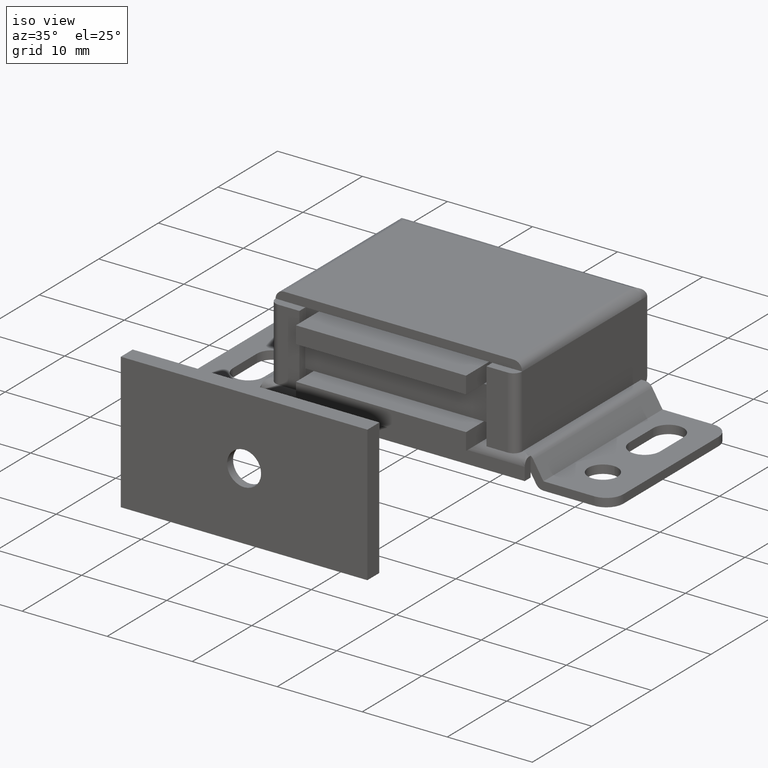
[diagram: clean part render]
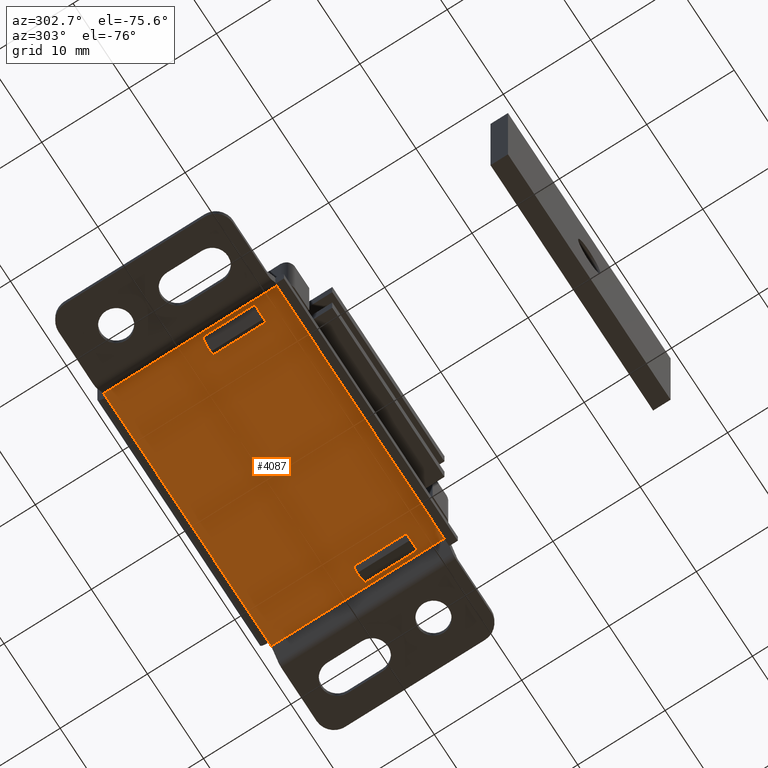
[diagram: tour spotlight — one face highlighted and labeled with its STEP entity id]
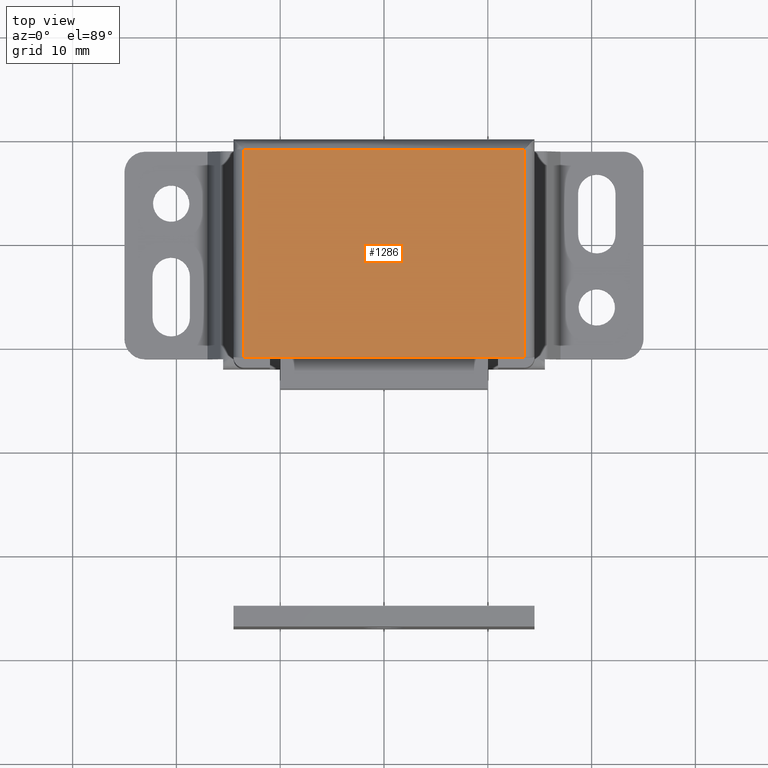
[diagram: tour spotlight — one face highlighted and labeled with its STEP entity id]
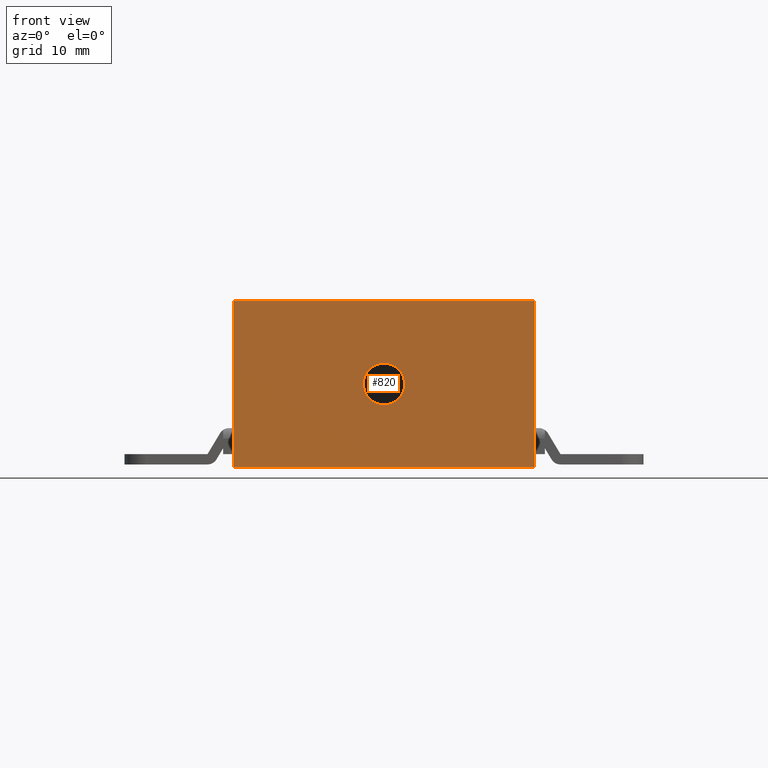
[diagram: tour spotlight — one face highlighted and labeled with its STEP entity id]
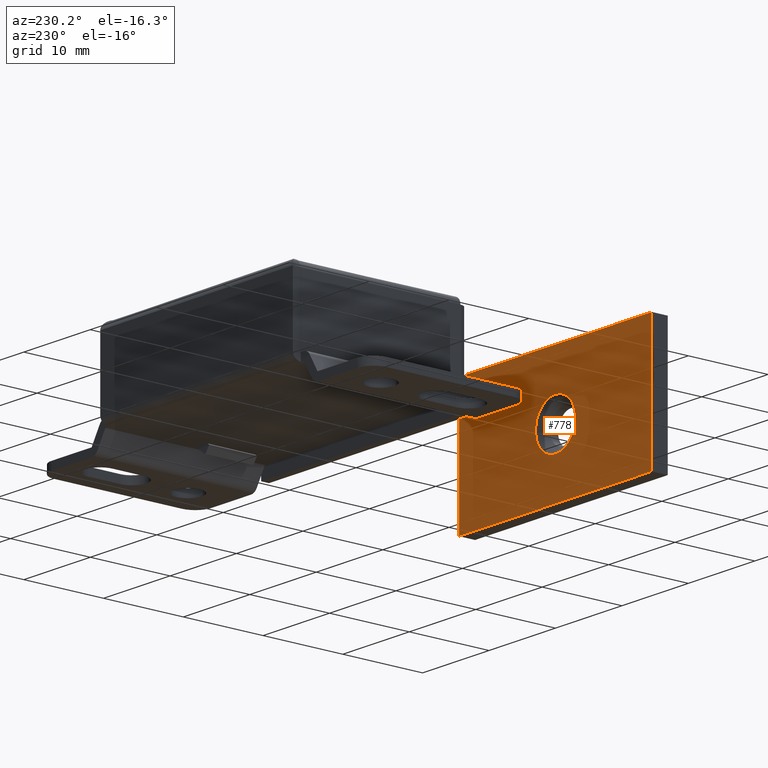
[diagram: tour spotlight — one face highlighted and labeled with its STEP entity id]
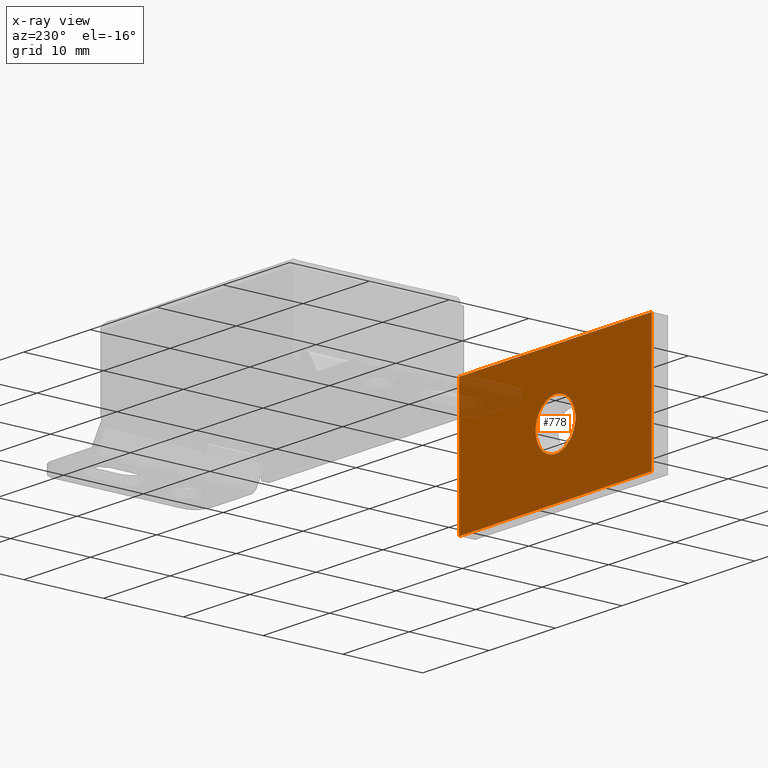
[diagram: x-ray of the same camera — body ghosted, this tour face saturated]
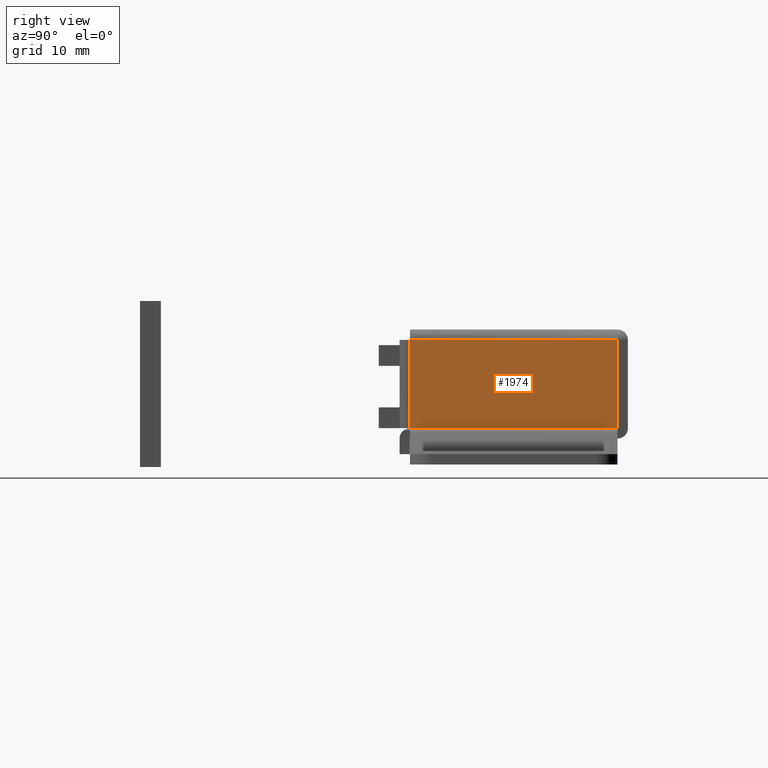
[diagram: tour spotlight — one face highlighted and labeled with its STEP entity id]
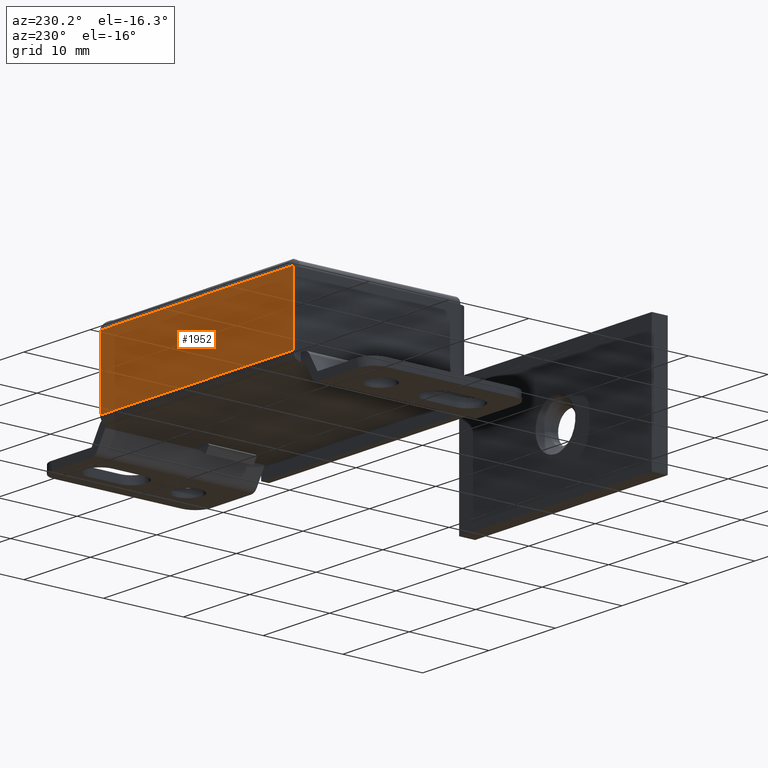
[diagram: tour spotlight — one face highlighted and labeled with its STEP entity id]
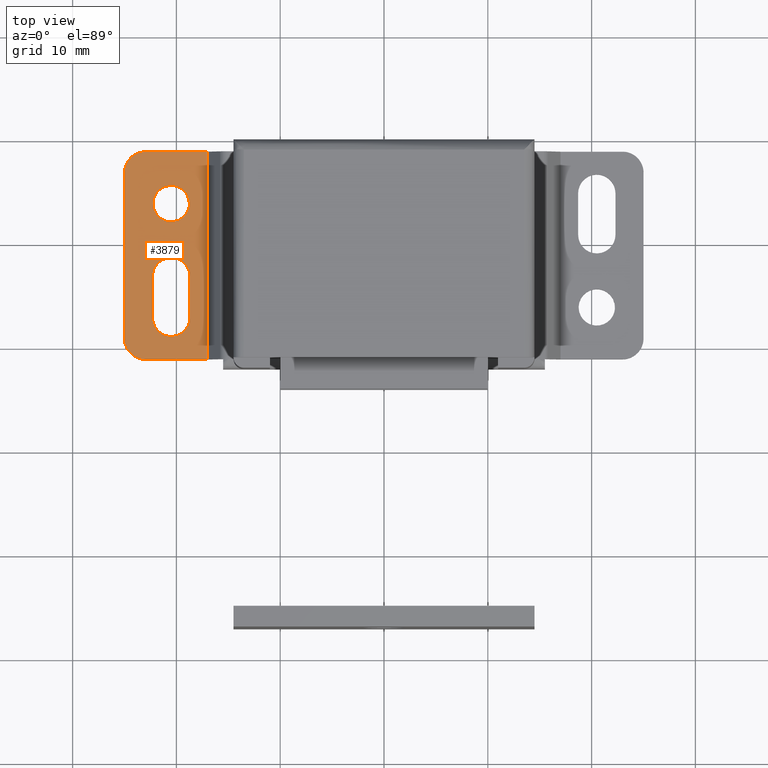
[diagram: tour spotlight — one face highlighted and labeled with its STEP entity id]
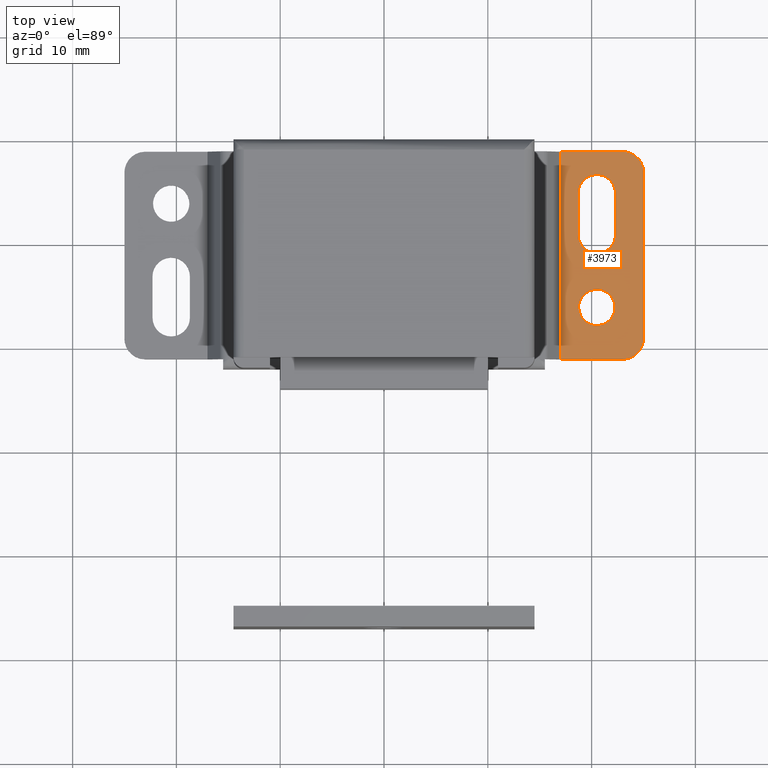
[diagram: tour spotlight — one face highlighted and labeled with its STEP entity id]
A machine part: a face-by-face anatomy tour. The part has 122 B-rep faces; the first image is the clean iso view, then the 8 largest visible faces are spotlighted one at a time (largest first), each with its STEP entity span.

Face 1 — auxiliary view, entity #4087. In plain terms, the highlighted face is a freeform B-spline surface patch.
Definition (entity closure, byte-faithful):
#1988=CARTESIAN_POINT('',(14.500004000000001,-1.0,2.500000000000000));
#1989=VERTEX_POINT('',#1988);
#2039=CARTESIAN_POINT('',(-14.500000000000000,-1.0,2.500000000000000));
#2040=VERTEX_POINT('',#2039);
#2584=CARTESIAN_POINT('',(-14.499983999999900,-18.0,2.500000000000000));
#2585=VERTEX_POINT('',#2584);
#2600=CARTESIAN_POINT('',(-12.761046999999900,-18.0,2.500000000000000));
#2601=VERTEX_POINT('',#2600);
#2607=CARTESIAN_POINT('',(-12.761046999999900,-18.0,2.500000000000000));
#2608=CARTESIAN_POINT('',(-14.499983999999900,-18.0,2.500000000000000));
#2609=QUASI_UNIFORM_CURVE('',1,(#2607,#2608),.UNSPECIFIED.,.F.,.U.);
#2610=EDGE_CURVE('',#2601,#2585,#2609,.T.);
#2620=CARTESIAN_POINT('',(-14.499983999999900,-12.0,2.500000000000000));
#2621=VERTEX_POINT('',#2620);
#2629=CARTESIAN_POINT('',(-12.761046999999900,-12.0,2.500000000000000));
#2630=VERTEX_POINT('',#2629);
#2631=CARTESIAN_POINT('',(-12.761046999999900,-12.0,2.500000000000000));
#2632=CARTESIAN_POINT('',(-14.499983999999900,-12.0,2.500000000000000));
#2633=QUASI_UNIFORM_CURVE('',1,(#2631,#2632),.UNSPECIFIED.,.F.,.U.);
#2634=EDGE_CURVE('',#2630,#2621,#2633,.T.);
#2663=CARTESIAN_POINT('',(-12.761046999999900,-12.0,2.500000000000000));
#2664=CARTESIAN_POINT('',(-12.761046999999900,-18.0,2.500000000000000));
#2665=QUASI_UNIFORM_CURVE('',1,(#2663,#2664),.UNSPECIFIED.,.F.,.U.);
#2666=EDGE_CURVE('',#2630,#2601,#2665,.T.);
#2693=CARTESIAN_POINT('',(-14.499983999999900,-12.0,2.500000000000000));
#2694=CARTESIAN_POINT('',(-14.499983999999900,-18.0,2.500000000000000));
#2695=QUASI_UNIFORM_CURVE('',1,(#2693,#2694),.UNSPECIFIED.,.F.,.U.);
#2696=EDGE_CURVE('',#2621,#2585,#2695,.T.);
#2709=CARTESIAN_POINT('',(14.499983999999900,-18.0,2.500000000000000));
#2710=VERTEX_POINT('',#2709);
#2716=CARTESIAN_POINT('',(12.761046999999900,-18.0,2.500000000000000));
#2717=VERTEX_POINT('',#2716);
#2718=CARTESIAN_POINT('',(14.499983999999900,-18.0,2.500000000000000));
#2719=CARTESIAN_POINT('',(12.761046999999900,-18.0,2.500000000000000));
#2720=QUASI_UNIFORM_CURVE('',1,(#2718,#2719),.UNSPECIFIED.,.F.,.U.);
#2721=EDGE_CURVE('',#2710,#2717,#2720,.T.);
#2737=CARTESIAN_POINT('',(12.761046999999900,-12.0,2.500000000000000));
#2738=VERTEX_POINT('',#2737);
#2744=CARTESIAN_POINT('',(14.499983999999900,-12.0,2.500000000000000));
#2745=VERTEX_POINT('',#2744);
#2746=CARTESIAN_POINT('',(14.499983999999900,-12.0,2.500000000000000));
#2747=CARTESIAN_POINT('',(12.761046999999900,-12.0,2.500000000000000));
#2748=QUASI_UNIFORM_CURVE('',1,(#2746,#2747),.UNSPECIFIED.,.F.,.U.);
#2749=EDGE_CURVE('',#2745,#2738,#2748,.T.);
#2765=CARTESIAN_POINT('',(12.761046999999900,-12.0,2.500000000000000));
#2766=CARTESIAN_POINT('',(12.761046999999900,-18.0,2.500000000000000));
#2767=QUASI_UNIFORM_CURVE('',1,(#2765,#2766),.UNSPECIFIED.,.F.,.U.);
#2768=EDGE_CURVE('',#2738,#2717,#2767,.T.);
#2783=CARTESIAN_POINT('',(14.499983999999900,-12.0,2.500000000000000));
#2784=CARTESIAN_POINT('',(14.499983999999900,-18.0,2.500000000000000));
#2785=QUASI_UNIFORM_CURVE('',1,(#2783,#2784),.UNSPECIFIED.,.F.,.U.);
#2786=EDGE_CURVE('',#2745,#2710,#2785,.T.);
#2798=CARTESIAN_POINT('',(15.500003999999951,-21.009992000000000,2.500000000000000));
#2799=VERTEX_POINT('',#2798);
#2812=CARTESIAN_POINT('',(-15.500000000000000,-21.009992000000000,2.500000000000000));
#2813=VERTEX_POINT('',#2812);
#2819=CARTESIAN_POINT('',(-15.500000000000000,-21.009992000000000,2.500000000000000));
#2820=CARTESIAN_POINT('',(15.500003999999951,-21.009992000000000,2.500000000000000));
#2821=QUASI_UNIFORM_CURVE('',1,(#2819,#2820),.UNSPECIFIED.,.F.,.U.);
#2822=EDGE_CURVE('',#2813,#2799,#2821,.T.);
#2898=CARTESIAN_POINT('',(-14.500000000000000,-1.0,2.500000000000000));
#2899=CARTESIAN_POINT('',(14.500004000000001,-1.0,2.500000000000000));
#2900=QUASI_UNIFORM_CURVE('',1,(#2898,#2899),.UNSPECIFIED.,.F.,.U.);
#2901=EDGE_CURVE('',#2040,#1989,#2900,.T.);
#3649=CARTESIAN_POINT('',(14.933804895014900,-1.0,2.500000000000000));
#3650=VERTEX_POINT('',#3649);
#3656=CARTESIAN_POINT('',(14.933804895014900,-1.0,2.500000000000000));
#3657=CARTESIAN_POINT('',(14.500004000000001,-1.0,2.500000000000000));
#3658=QUASI_UNIFORM_CURVE('',1,(#3656,#3657),.UNSPECIFIED.,.F.,.U.);
#3659=EDGE_CURVE('',#3650,#1989,#3658,.T.);
#3683=CARTESIAN_POINT('',(14.933804895014839,-21.0,2.500000000000000));
#3684=VERTEX_POINT('',#3683);
#3690=CARTESIAN_POINT('',(14.933804895014839,-21.0,2.500000000000000));
#3691=CARTESIAN_POINT('',(14.933804895014900,-1.0,2.500000000000000));
#3692=QUASI_UNIFORM_CURVE('',1,(#3690,#3691),.UNSPECIFIED.,.F.,.U.);
#3693=EDGE_CURVE('',#3684,#3650,#3692,.T.);
#3823=CARTESIAN_POINT('',(-14.933821898012740,-21.0,2.500000000000000));
#3824=VERTEX_POINT('',#3823);
#3831=CARTESIAN_POINT('',(-14.933823000000000,-1.0,2.500000000000000));
#3832=VERTEX_POINT('',#3831);
#3838=CARTESIAN_POINT('',(-14.933821898012740,-21.0,2.500000000000000));
#3839=CARTESIAN_POINT('',(-14.933823000000000,-1.0,2.500000000000000));
#3840=QUASI_UNIFORM_CURVE('',1,(#3838,#3839),.UNSPECIFIED.,.F.,.U.);
#3841=EDGE_CURVE('',#3824,#3832,#3840,.T.);
#3986=CARTESIAN_POINT('',(-14.500000000000000,-1.0,2.500000000000000));
#3987=CARTESIAN_POINT('',(-14.933823000000000,-1.0,2.500000000000000));
#3988=QUASI_UNIFORM_CURVE('',1,(#3986,#3987),.UNSPECIFIED.,.F.,.U.);
#3989=EDGE_CURVE('',#2040,#3832,#3988,.T.);
#4006=CARTESIAN_POINT('',(15.500003999999951,-20.999991999999999,2.500000000000000));
#4007=VERTEX_POINT('',#4006);
#4013=CARTESIAN_POINT('',(14.933804895014839,-21.0,2.500000000000000));
#4014=CARTESIAN_POINT('',(15.500003999999951,-20.999991999999999,2.500000000000000));
#4015=QUASI_UNIFORM_CURVE('',1,(#4013,#4014),.UNSPECIFIED.,.F.,.U.);
#4016=EDGE_CURVE('',#3684,#4007,#4015,.T.);
#4035=CARTESIAN_POINT('',(-15.500000000000000,-20.999991999999999,2.500000000000000));
#4036=VERTEX_POINT('',#4035);
#4037=CARTESIAN_POINT('',(-15.500000000000000,-20.999991999999999,2.500000000000000));
#4038=CARTESIAN_POINT('',(-14.933821898012740,-21.0,2.500000000000000));
#4039=QUASI_UNIFORM_CURVE('',1,(#4037,#4038),.UNSPECIFIED.,.F.,.U.);
#4040=EDGE_CURVE('',#4036,#3824,#4039,.T.);
#4050=CARTESIAN_POINT('',(17.048454139715918,-22.009491061616760,2.500000000000000));
#4051=CARTESIAN_POINT('',(-17.048450971200879,-22.009491061616760,2.500000000000000));
#4052=CARTESIAN_POINT('',(17.048454139715918,-0.000500401673438,2.500000000000000));
#4053=CARTESIAN_POINT('',(-17.048450971200879,-0.000500401673438,2.500000000000000));
#4054=B_SPLINE_SURFACE_WITH_KNOTS('',1,1,((#4050,#4052),(#4051,#4053)),.UNSPECIFIED.,.F.,.F.,.U.,(2,2),(2,2),(0.0,34.096905110916801),(0.0,22.008990659943318),.UNSPECIFIED.);
#4055=ORIENTED_EDGE('',*,*,#3989,.F.);
#4056=ORIENTED_EDGE('',*,*,#2901,.T.);
#4057=ORIENTED_EDGE('',*,*,#3659,.F.);
#4058=ORIENTED_EDGE('',*,*,#3693,.F.);
#4059=ORIENTED_EDGE('',*,*,#4016,.T.);
#4060=CARTESIAN_POINT('',(15.500003999999951,-21.009992000000000,2.500000000000000));
#4061=CARTESIAN_POINT('',(15.500003999999951,-20.999991999999999,2.500000000000000));
#4062=QUASI_UNIFORM_CURVE('',1,(#4060,#4061),.UNSPECIFIED.,.F.,.U.);
#4063=EDGE_CURVE('',#2799,#4007,#4062,.T.);
#4064=ORIENTED_EDGE('',*,*,#4063,.F.);
#4065=ORIENTED_EDGE('',*,*,#2822,.F.);
#4066=CARTESIAN_POINT('',(-15.500000000000000,-21.009992000000000,2.500000000000000));
#4067=CARTESIAN_POINT('',(-15.500000000000000,-20.999991999999999,2.500000000000000));
#4068=QUASI_UNIFORM_CURVE('',1,(#4066,#4067),.UNSPECIFIED.,.F.,.U.);
#4069=EDGE_CURVE('',#2813,#4036,#4068,.T.);
#4070=ORIENTED_EDGE('',*,*,#4069,.T.);
#4071=ORIENTED_EDGE('',*,*,#4040,.T.);
#4072=ORIENTED_EDGE('',*,*,#3841,.T.);
#4073=EDGE_LOOP('',(#4055,#4056,#4057,#4058,#4059,#4064,#4065,#4070,#4071,#4072));
#4074=FACE_OUTER_BOUND('',#4073,.T.);
#4075=ORIENTED_EDGE('',*,*,#2749,.T.);
#4076=ORIENTED_EDGE('',*,*,#2768,.T.);
#4077=ORIENTED_EDGE('',*,*,#2721,.F.);
#4078=ORIENTED_EDGE('',*,*,#2786,.F.);
#4079=EDGE_LOOP('',(#4075,#4076,#4077,#4078));
#4080=FACE_BOUND('',#4079,.T.);
#4081=ORIENTED_EDGE('',*,*,#2666,.F.);
#4082=ORIENTED_EDGE('',*,*,#2634,.T.);
#4083=ORIENTED_EDGE('',*,*,#2696,.T.);
#4084=ORIENTED_EDGE('',*,*,#2610,.F.);
#4085=EDGE_LOOP('',(#4081,#4082,#4083,#4084));
#4086=FACE_BOUND('',#4085,.T.);
#4087=ADVANCED_FACE('',(#4074,#4080,#4086),#4054,.T.);

Face 2 — top view, entity #1286. In plain terms, the highlighted face is a freeform B-spline surface patch.
Definition (entity closure, byte-faithful):
#1251=CARTESIAN_POINT('',(-14.848650147468760,-21.998999961236120,13.0));
#1252=CARTESIAN_POINT('',(14.848654871665291,-21.998999961236120,13.0));
#1253=CARTESIAN_POINT('',(-14.848650147468760,-0.000999502322078,13.0));
#1254=CARTESIAN_POINT('',(14.848654871665291,-0.000999502322078,13.0));
#1255=B_SPLINE_SURFACE_WITH_KNOTS('',1,1,((#1251,#1253),(#1252,#1254)),.UNSPECIFIED.,.F.,.F.,.U.,(2,2),(2,2),(0.0,29.697305019134049),(0.0,21.998000458914049),.UNSPECIFIED.);
#1256=CARTESIAN_POINT('',(13.500004000000001,-1.0,13.0));
#1257=VERTEX_POINT('',#1256);
#1258=CARTESIAN_POINT('',(-13.500000000000000,-1.0,13.0));
#1259=VERTEX_POINT('',#1258);
#1260=CARTESIAN_POINT('',(13.500004000000001,-1.0,13.0));
#1261=CARTESIAN_POINT('',(-13.500000000000000,-1.0,13.0));
#1262=QUASI_UNIFORM_CURVE('',1,(#1260,#1261),.UNSPECIFIED.,.F.,.U.);
#1263=EDGE_CURVE('',#1257,#1259,#1262,.T.);
#1264=ORIENTED_EDGE('',*,*,#1263,.T.);
#1265=CARTESIAN_POINT('',(-13.500000000000000,-21.0,13.0));
#1266=VERTEX_POINT('',#1265);
#1267=CARTESIAN_POINT('',(-13.500000000000000,-1.0,13.0));
#1268=CARTESIAN_POINT('',(-13.500000000000000,-21.0,13.0));
#1269=QUASI_UNIFORM_CURVE('',1,(#1267,#1268),.UNSPECIFIED.,.F.,.U.);
#1270=EDGE_CURVE('',#1259,#1266,#1269,.T.);
#1271=ORIENTED_EDGE('',*,*,#1270,.T.);
#1272=CARTESIAN_POINT('',(13.500004000000001,-21.0,13.0));
#1273=VERTEX_POINT('',#1272);
#1274=CARTESIAN_POINT('',(-13.500000000000000,-21.0,13.0));
#1275=CARTESIAN_POINT('',(13.500004000000001,-21.0,13.0));
#1276=QUASI_UNIFORM_CURVE('',1,(#1274,#1275),.UNSPECIFIED.,.F.,.U.);
#1277=EDGE_CURVE('',#1266,#1273,#1276,.T.);
#1278=ORIENTED_EDGE('',*,*,#1277,.T.);
#1279=CARTESIAN_POINT('',(13.500004000000001,-21.0,13.0));
#1280=CARTESIAN_POINT('',(13.500004000000001,-1.0,13.0));
#1281=QUASI_UNIFORM_CURVE('',1,(#1279,#1280),.UNSPECIFIED.,.F.,.U.);
#1282=EDGE_CURVE('',#1273,#1257,#1281,.T.);
#1283=ORIENTED_EDGE('',*,*,#1282,.T.);
#1284=EDGE_LOOP('',(#1264,#1271,#1278,#1283));
#1285=FACE_OUTER_BOUND('',#1284,.T.);
#1286=ADVANCED_FACE('',(#1285),#1255,.T.);

Face 3 — front view, entity #820. In plain terms, the highlighted face is a freeform B-spline surface patch.
Definition (entity closure, byte-faithful):
#632=CARTESIAN_POINT('',(1.996269596835889,-46.999984370605468,7.627902920802020));
#633=VERTEX_POINT('',#632);
#639=CARTESIAN_POINT('',(0.0,-46.999984370605468,9.750000000000000));
#640=VERTEX_POINT('',#639);
#641=CARTESIAN_POINT('',(1.996269596835888,-46.999984370605468,7.627902920802020));
#642=CARTESIAN_POINT('',(2.0,-46.999984370605468,7.688894473338509));
#643=CARTESIAN_POINT('',(2.0,-46.999984370605468,7.750000000000000));
#644=CARTESIAN_POINT('',(2.000000000000000,-46.999984370605453,9.750000000000000));
#645=CARTESIAN_POINT('',(0.0,-46.999984370605468,9.750000000000000));
#653=(BOUNDED_CURVE()B_SPLINE_CURVE(2,(#641,#642,#643,#644,#645),.UNSPECIFIED.,.F.,.U.)B_SPLINE_CURVE_WITH_KNOTS((3,2,3),(0.239332962230882,0.250000000000000,0.500000000000000),.UNSPECIFIED.)CURVE()GEOMETRIC_REPRESENTATION_ITEM()RATIONAL_B_SPLINE_CURVE((0.976072041649441,0.987502787890393,1.0,0.707106781186548,1.0))REPRESENTATION_ITEM(''));
#654=EDGE_CURVE('',#633,#640,#653,.T.);
#656=CARTESIAN_POINT('',(-1.996269596835889,-46.999984370605468,7.872097079197980));
#657=VERTEX_POINT('',#656);
#658=CARTESIAN_POINT('',(0.0,-46.999984370605468,9.750000000000000));
#659=CARTESIAN_POINT('',(-1.881412133690279,-46.999984370605461,9.750000000000000));
#660=CARTESIAN_POINT('',(-1.996269596835889,-46.999984370605468,7.872097079197981));
#668=(BOUNDED_CURVE()B_SPLINE_CURVE(2,(#658,#659,#660),.UNSPECIFIED.,.F.,.U.)B_SPLINE_CURVE_WITH_KNOTS((3,3),(0.500000000000000,0.739332962230882),.UNSPECIFIED.)CURVE()GEOMETRIC_REPRESENTATION_ITEM()RATIONAL_B_SPLINE_CURVE((1.0,0.719603993296154,0.976072041649441))REPRESENTATION_ITEM(''));
#669=EDGE_CURVE('',#640,#657,#668,.T.);
#702=CARTESIAN_POINT('',(0.0,-46.999984370605468,5.750000000000000));
#703=VERTEX_POINT('',#702);
#704=CARTESIAN_POINT('',(-1.996269596835889,-46.999984370605468,7.872097079197981));
#705=CARTESIAN_POINT('',(-2.000000000000000,-46.999984370605475,7.811105526661490));
#706=CARTESIAN_POINT('',(-2.0,-46.999984370605468,7.750000000000000));
#707=CARTESIAN_POINT('',(-2.000000000000000,-46.999984370605453,5.750000000000000));
#708=CARTESIAN_POINT('',(0.0,-46.999984370605468,5.750000000000000));
#716=(BOUNDED_CURVE()B_SPLINE_CURVE(2,(#704,#705,#706,#707,#708),.UNSPECIFIED.,.F.,.U.)B_SPLINE_CURVE_WITH_KNOTS((3,2,3),(0.739332962230882,0.750000000000000,1.0),.UNSPECIFIED.)CURVE()GEOMETRIC_REPRESENTATION_ITEM()RATIONAL_B_SPLINE_CURVE((0.976072041649441,0.987502787890393,1.0,0.707106781186548,1.0))REPRESENTATION_ITEM(''));
#717=EDGE_CURVE('',#657,#703,#716,.T.);
#719=CARTESIAN_POINT('',(0.0,-46.999984370605468,5.750000000000000));
#720=CARTESIAN_POINT('',(1.881412133690277,-46.999984370605453,5.749999999999999));
#721=CARTESIAN_POINT('',(1.996269596835888,-46.999984370605468,7.627902920802020));
#729=(BOUNDED_CURVE()B_SPLINE_CURVE(2,(#719,#720,#721),.UNSPECIFIED.,.F.,.U.)B_SPLINE_CURVE_WITH_KNOTS((3,3),(0.0,0.239332962230882),.UNSPECIFIED.)CURVE()GEOMETRIC_REPRESENTATION_ITEM()RATIONAL_B_SPLINE_CURVE((1.0,0.719603993296155,0.976072041649441))REPRESENTATION_ITEM(''));
#730=EDGE_CURVE('',#703,#633,#729,.T.);
#779=CARTESIAN_POINT('',(-15.948549943792379,-46.999984370605468,16.549199968988891));
#780=CARTESIAN_POINT('',(15.948550721632991,-46.999984370605468,16.549199968988891));
#781=CARTESIAN_POINT('',(-15.948549943792379,-46.999984370605468,-1.049200398142337));
#782=CARTESIAN_POINT('',(15.948550721632991,-46.999984370605468,-1.049200398142337));
#783=B_SPLINE_SURFACE_WITH_KNOTS('',1,1,((#779,#781),(#780,#782)),.UNSPECIFIED.,.F.,.F.,.U.,(2,2),(2,2),(0.0,31.897100665425370),(0.0,17.598400367131230),.UNSPECIFIED.);
#784=CARTESIAN_POINT('',(-14.500000000000000,-46.999984370605517,15.750000000000000));
#785=VERTEX_POINT('',#784);
#786=CARTESIAN_POINT('',(14.500000000000000,-46.999984370605517,15.750000000000000));
#787=VERTEX_POINT('',#786);
#788=CARTESIAN_POINT('',(-14.500000000000000,-46.999984370605517,15.750000000000000));
#789=CARTESIAN_POINT('',(14.500000000000000,-46.999984370605517,15.750000000000000));
#790=QUASI_UNIFORM_CURVE('',1,(#788,#789),.UNSPECIFIED.,.F.,.U.);
#791=EDGE_CURVE('',#785,#787,#790,.T.);
#792=ORIENTED_EDGE('',*,*,#791,.F.);
#793=CARTESIAN_POINT('',(-14.500000000000000,-46.999984370605517,-0.250000000000000));
#794=VERTEX_POINT('',#793);
#795=CARTESIAN_POINT('',(-14.500000000000000,-46.999984370605517,-0.250000000000000));
#796=CARTESIAN_POINT('',(-14.500000000000000,-46.999984370605517,15.750000000000000));
#797=QUASI_UNIFORM_CURVE('',1,(#795,#796),.UNSPECIFIED.,.F.,.U.);
#798=EDGE_CURVE('',#794,#785,#797,.T.);
#799=ORIENTED_EDGE('',*,*,#798,.F.);
#800=CARTESIAN_POINT('',(14.500000000000000,-46.999984370605517,-0.250000000000000));
#801=VERTEX_POINT('',#800);
#802=CARTESIAN_POINT('',(14.500000000000000,-46.999984370605517,-0.250000000000000));
#803=CARTESIAN_POINT('',(-14.500000000000000,-46.999984370605517,-0.250000000000000));
#804=QUASI_UNIFORM_CURVE('',1,(#802,#803),.UNSPECIFIED.,.F.,.U.);
#805=EDGE_CURVE('',#801,#794,#804,.T.);
#806=ORIENTED_EDGE('',*,*,#805,.F.);
#807=CARTESIAN_POINT('',(14.500000000000000,-46.999984370605517,15.750000000000000));
#808=CARTESIAN_POINT('',(14.500000000000000,-46.999984370605517,-0.250000000000000));
#809=QUASI_UNIFORM_CURVE('',1,(#807,#808),.UNSPECIFIED.,.F.,.U.);
#810=EDGE_CURVE('',#787,#801,#809,.T.);
#811=ORIENTED_EDGE('',*,*,#810,.F.);
#812=EDGE_LOOP('',(#792,#799,#806,#811));
#813=FACE_OUTER_BOUND('',#812,.T.);
#814=ORIENTED_EDGE('',*,*,#669,.F.);
#815=ORIENTED_EDGE('',*,*,#654,.F.);
#816=ORIENTED_EDGE('',*,*,#730,.F.);
#817=ORIENTED_EDGE('',*,*,#717,.F.);
#818=EDGE_LOOP('',(#814,#815,#816,#817));
#819=FACE_BOUND('',#818,.T.);
#820=ADVANCED_FACE('',(#813,#819),#783,.F.);

Face 4 — auxiliary view, entity #778. An x-ray twin of the same camera follows (body ghosted, this face saturated) — the face is partly hidden behind the body. In plain terms, the highlighted face is a freeform B-spline surface patch.
Definition (entity closure, byte-faithful):
#436=CARTESIAN_POINT('',(2.990752001212223,-44.999984370573110,7.514622712566858));
#437=VERTEX_POINT('',#436);
#443=CARTESIAN_POINT('',(0.0,-44.999984370605482,4.750000000000000));
#444=VERTEX_POINT('',#443);
#445=CARTESIAN_POINT('',(0.0,-44.999984370605482,4.750000000000000));
#446=CARTESIAN_POINT('',(2.773171474760964,-44.999984370589303,4.749999999998730));
#447=CARTESIAN_POINT('',(2.990752001212223,-44.999984370573110,7.514622712566858));
#455=(BOUNDED_CURVE()B_SPLINE_CURVE(2,(#445,#446,#447),.UNSPECIFIED.,.F.,.U.)B_SPLINE_CURVE_WITH_KNOTS((3,3),(0.0,0.236331300618606),.UNSPECIFIED.)CURVE()GEOMETRIC_REPRESENTATION_ITEM()RATIONAL_B_SPLINE_CURVE((1.0,0.723120658621788,0.969723356142262))REPRESENTATION_ITEM(''));
#456=EDGE_CURVE('',#444,#437,#455,.T.);
#458=CARTESIAN_POINT('',(-2.990752001212222,-44.999984370573110,7.985377287433142));
#459=VERTEX_POINT('',#458);
#460=CARTESIAN_POINT('',(-2.990752001212222,-44.999984370573110,7.985377287433142));
#461=CARTESIAN_POINT('',(-3.000000000031698,-44.999984370573713,7.867870321149610));
#462=CARTESIAN_POINT('',(-3.000000000031063,-44.999984370574332,7.750000000002445));
#463=CARTESIAN_POINT('',(-3.000000000014922,-44.999984370590518,4.750000000001173));
#464=CARTESIAN_POINT('',(0.0,-44.999984370605482,4.750000000000000));
#472=(BOUNDED_CURVE()B_SPLINE_CURVE(2,(#460,#461,#462,#463,#464),.UNSPECIFIED.,.F.,.U.)B_SPLINE_CURVE_WITH_KNOTS((3,2,3),(0.736331300618606,0.750000000000000,1.0),.UNSPECIFIED.)CURVE()GEOMETRIC_REPRESENTATION_ITEM()RATIONAL_B_SPLINE_CURVE((0.969723356142262,0.983986122564760,1.0,0.707106781186548,1.0))REPRESENTATION_ITEM(''));
#473=EDGE_CURVE('',#459,#444,#472,.T.);
#579=CARTESIAN_POINT('',(0.0,-44.999984370605482,10.750000000000000));
#580=VERTEX_POINT('',#579);
#581=CARTESIAN_POINT('',(0.0,-44.999984370605482,10.750000000000000));
#582=CARTESIAN_POINT('',(-2.773171474760963,-44.999984370589281,10.750000000001270));
#583=CARTESIAN_POINT('',(-2.990752001212222,-44.999984370573110,7.985377287433142));
#591=(BOUNDED_CURVE()B_SPLINE_CURVE(2,(#581,#582,#583),.UNSPECIFIED.,.F.,.U.)B_SPLINE_CURVE_WITH_KNOTS((3,3),(0.500000000000000,0.736331300618606),.UNSPECIFIED.)CURVE()GEOMETRIC_REPRESENTATION_ITEM()RATIONAL_B_SPLINE_CURVE((1.0,0.723120658621788,0.969723356142262))REPRESENTATION_ITEM(''));
#592=EDGE_CURVE('',#580,#459,#591,.T.);
#594=CARTESIAN_POINT('',(2.990752001212223,-44.999984370573110,7.514622712566858));
#595=CARTESIAN_POINT('',(3.000000000031697,-44.999984370573706,7.632129678850389));
#596=CARTESIAN_POINT('',(3.000000000031063,-44.999984370574332,7.749999999997554));
#597=CARTESIAN_POINT('',(3.000000000014922,-44.999984370590518,10.749999999998826));
#598=CARTESIAN_POINT('',(0.0,-44.999984370605482,10.750000000000000));
#606=(BOUNDED_CURVE()B_SPLINE_CURVE(2,(#594,#595,#596,#597,#598),.UNSPECIFIED.,.F.,.U.)B_SPLINE_CURVE_WITH_KNOTS((3,2,3),(0.236331300618606,0.250000000000000,0.500000000000000),.UNSPECIFIED.)CURVE()GEOMETRIC_REPRESENTATION_ITEM()RATIONAL_B_SPLINE_CURVE((0.969723356142262,0.983986122564760,1.0,0.707106781186548,1.0))REPRESENTATION_ITEM(''));
#607=EDGE_CURVE('',#437,#580,#606,.T.);
#737=CARTESIAN_POINT('',(-15.948549943792379,-44.999984370605482,16.549199968988891));
#738=CARTESIAN_POINT('',(15.948550721632991,-44.999984370605482,16.549199968988891));
#739=CARTESIAN_POINT('',(-15.948549943792379,-44.999984370605482,-1.049200398142337));
#740=CARTESIAN_POINT('',(15.948550721632991,-44.999984370605482,-1.049200398142337));
#741=B_SPLINE_SURFACE_WITH_KNOTS('',1,1,((#737,#739),(#738,#740)),.UNSPECIFIED.,.F.,.F.,.U.,(2,2),(2,2),(0.0,31.897100665425370),(0.0,17.598400367131230),.UNSPECIFIED.);
#742=CARTESIAN_POINT('',(-14.500000000000000,-44.999984370605517,15.750000000000000));
#743=VERTEX_POINT('',#742);
#744=CARTESIAN_POINT('',(14.500000000000000,-44.999984370605517,15.750000000000000));
#745=VERTEX_POINT('',#744);
#746=CARTESIAN_POINT('',(-14.500000000000000,-44.999984370605517,15.750000000000000));
#747=CARTESIAN_POINT('',(14.500000000000000,-44.999984370605517,15.750000000000000));
#748=QUASI_UNIFORM_CURVE('',1,(#746,#747),.UNSPECIFIED.,.F.,.U.);
#749=EDGE_CURVE('',#743,#745,#748,.T.);
#750=ORIENTED_EDGE('',*,*,#749,.T.);
#751=CARTESIAN_POINT('',(14.500000000000000,-44.999984370605517,-0.250000000000000));
#752=VERTEX_POINT('',#751);
#753=CARTESIAN_POINT('',(14.500000000000000,-44.999984370605517,15.750000000000000));
#754=CARTESIAN_POINT('',(14.500000000000000,-44.999984370605517,-0.250000000000000));
#755=QUASI_UNIFORM_CURVE('',1,(#753,#754),.UNSPECIFIED.,.F.,.U.);
#756=EDGE_CURVE('',#745,#752,#755,.T.);
#757=ORIENTED_EDGE('',*,*,#756,.T.);
#758=CARTESIAN_POINT('',(-14.500000000000000,-44.999984370605517,-0.250000000000000));
#759=VERTEX_POINT('',#758);
#760=CARTESIAN_POINT('',(14.500000000000000,-44.999984370605517,-0.250000000000000));
#761=CARTESIAN_POINT('',(-14.500000000000000,-44.999984370605517,-0.250000000000000));
#762=QUASI_UNIFORM_CURVE('',1,(#760,#761),.UNSPECIFIED.,.F.,.U.);
#763=EDGE_CURVE('',#752,#759,#762,.T.);
#764=ORIENTED_EDGE('',*,*,#763,.T.);
#765=CARTESIAN_POINT('',(-14.500000000000000,-44.999984370605517,-0.250000000000000));
#766=CARTESIAN_POINT('',(-14.500000000000000,-44.999984370605517,15.750000000000000));
#767=QUASI_UNIFORM_CURVE('',1,(#765,#766),.UNSPECIFIED.,.F.,.U.);
#768=EDGE_CURVE('',#759,#743,#767,.T.);
#769=ORIENTED_EDGE('',*,*,#768,.T.);
#770=EDGE_LOOP('',(#750,#757,#764,#769));
#771=FACE_OUTER_BOUND('',#770,.T.);
#772=ORIENTED_EDGE('',*,*,#592,.T.);
#773=ORIENTED_EDGE('',*,*,#473,.T.);
#774=ORIENTED_EDGE('',*,*,#456,.T.);
#775=ORIENTED_EDGE('',*,*,#607,.T.);
#776=EDGE_LOOP('',(#772,#773,#774,#775));
#777=FACE_BOUND('',#776,.T.);
#778=ADVANCED_FACE('',(#771,#777),#741,.T.);

Face 5 — right view, entity #1974. In plain terms, the highlighted face is a freeform B-spline surface patch.
Definition (entity closure, byte-faithful):
#1322=CARTESIAN_POINT('',(14.500000000000000,-21.0,12.0));
#1323=VERTEX_POINT('',#1322);
#1396=CARTESIAN_POINT('',(14.500004000000059,-1.010000000000000,12.0));
#1397=VERTEX_POINT('',#1396);
#1398=CARTESIAN_POINT('',(14.500004000000059,-1.010000000000000,12.0));
#1399=CARTESIAN_POINT('',(14.500000000000000,-21.0,12.0));
#1400=QUASI_UNIFORM_CURVE('',1,(#1398,#1399),.UNSPECIFIED.,.F.,.U.);
#1401=EDGE_CURVE('',#1397,#1323,#1400,.T.);
#1675=CARTESIAN_POINT('',(14.500000000000000,-20.999991999999999,3.500000000000000));
#1676=VERTEX_POINT('',#1675);
#1689=CARTESIAN_POINT('',(14.500000000000000,-20.999991999999999,3.500000000000000));
#1690=CARTESIAN_POINT('',(14.500000000000000,-21.0,12.0));
#1691=QUASI_UNIFORM_CURVE('',1,(#1689,#1690),.UNSPECIFIED.,.F.,.U.);
#1692=EDGE_CURVE('',#1676,#1323,#1691,.T.);
#1953=CARTESIAN_POINT('',(14.500004000000001,-21.998500461255500,12.424574983525350));
#1954=CARTESIAN_POINT('',(14.500004000000001,-21.998500461255500,3.075424788486883));
#1955=CARTESIAN_POINT('',(14.500004000000001,-0.011499002570918,12.424574983525350));
#1956=CARTESIAN_POINT('',(14.500004000000001,-0.011499002570918,3.075424788486883));
#1957=B_SPLINE_SURFACE_WITH_KNOTS('',1,1,((#1953,#1955),(#1954,#1956)),.UNSPECIFIED.,.F.,.F.,.U.,(2,2),(2,2),(0.0,9.349150195038471),(0.0,21.987001458684581),.UNSPECIFIED.);
#1958=CARTESIAN_POINT('',(14.500004000000059,-1.010000000000000,3.500000000000000));
#1959=VERTEX_POINT('',#1958);
#1960=CARTESIAN_POINT('',(14.500000000000000,-20.999991999999999,3.500000000000000));
#1961=CARTESIAN_POINT('',(14.500004000000059,-1.010000000000000,3.500000000000000));
#1962=QUASI_UNIFORM_CURVE('',1,(#1960,#1961),.UNSPECIFIED.,.F.,.U.);
#1963=EDGE_CURVE('',#1676,#1959,#1962,.T.);
#1964=ORIENTED_EDGE('',*,*,#1963,.T.);
#1965=CARTESIAN_POINT('',(14.500004000000059,-1.010000000000000,12.0));
#1966=CARTESIAN_POINT('',(14.500004000000059,-1.010000000000000,3.500000000000000));
#1967=QUASI_UNIFORM_CURVE('',1,(#1965,#1966),.UNSPECIFIED.,.F.,.U.);
#1968=EDGE_CURVE('',#1397,#1959,#1967,.T.);
#1969=ORIENTED_EDGE('',*,*,#1968,.F.);
#1970=ORIENTED_EDGE('',*,*,#1401,.T.);
#1971=ORIENTED_EDGE('',*,*,#1692,.F.);
#1972=EDGE_LOOP('',(#1964,#1969,#1970,#1971));
#1973=FACE_OUTER_BOUND('',#1972,.T.);
#1974=ADVANCED_FACE('',(#1973),#1957,.T.);

Face 6 — auxiliary view, entity #1952. In plain terms, the highlighted face is a freeform B-spline surface patch.
Definition (entity closure, byte-faithful):
#1410=CARTESIAN_POINT('',(14.500004000000001,0.0,12.0));
#1411=VERTEX_POINT('',#1410);
#1455=CARTESIAN_POINT('',(-14.500000000000000,0.0,12.0));
#1456=VERTEX_POINT('',#1455);
#1506=CARTESIAN_POINT('',(-14.500000000000000,0.0,12.0));
#1507=CARTESIAN_POINT('',(14.500004000000001,0.0,12.0));
#1508=QUASI_UNIFORM_CURVE('',1,(#1506,#1507),.UNSPECIFIED.,.F.,.U.);
#1509=EDGE_CURVE('',#1456,#1411,#1508,.T.);
#1925=CARTESIAN_POINT('',(-15.948550143592371,0.0,3.075425016474650));
#1926=CARTESIAN_POINT('',(15.948554921433090,0.0,3.075425016474650));
#1927=CARTESIAN_POINT('',(-15.948550143592371,0.0,12.424575211513121));
#1928=CARTESIAN_POINT('',(15.948554921433090,0.0,12.424575211513121));
#1929=B_SPLINE_SURFACE_WITH_KNOTS('',1,1,((#1925,#1927),(#1926,#1928)),.UNSPECIFIED.,.F.,.F.,.U.,(2,2),(2,2),(0.0,31.897105065025460),(0.0,9.349150195038469),.UNSPECIFIED.);
#1930=CARTESIAN_POINT('',(-14.500000000000000,0.0,3.500000000000000));
#1931=VERTEX_POINT('',#1930);
#1932=CARTESIAN_POINT('',(-14.500000000000000,0.0,3.500000000000000));
#1933=CARTESIAN_POINT('',(-14.500000000000000,0.0,12.0));
#1934=QUASI_UNIFORM_CURVE('',1,(#1932,#1933),.UNSPECIFIED.,.F.,.U.);
#1935=EDGE_CURVE('',#1931,#1456,#1934,.T.);
#1936=ORIENTED_EDGE('',*,*,#1935,.T.);
#1937=ORIENTED_EDGE('',*,*,#1509,.T.);
#1938=CARTESIAN_POINT('',(14.500004000000001,0.0,3.500000000000000));
#1939=VERTEX_POINT('',#1938);
#1940=CARTESIAN_POINT('',(14.500004000000001,0.0,12.0));
#1941=CARTESIAN_POINT('',(14.500004000000001,0.0,3.500000000000000));
#1942=QUASI_UNIFORM_CURVE('',1,(#1940,#1941),.UNSPECIFIED.,.F.,.U.);
#1943=EDGE_CURVE('',#1411,#1939,#1942,.T.);
#1944=ORIENTED_EDGE('',*,*,#1943,.T.);
#1945=CARTESIAN_POINT('',(14.500004000000001,0.0,3.500000000000000));
#1946=CARTESIAN_POINT('',(-14.500000000000000,0.0,3.500000000000000));
#1947=QUASI_UNIFORM_CURVE('',1,(#1945,#1946),.UNSPECIFIED.,.F.,.U.);
#1948=EDGE_CURVE('',#1939,#1931,#1947,.T.);
#1949=ORIENTED_EDGE('',*,*,#1948,.T.);
#1950=EDGE_LOOP('',(#1936,#1937,#1944,#1949));
#1951=FACE_OUTER_BOUND('',#1950,.T.);
#1952=ADVANCED_FACE('',(#1951),#1929,.F.);

Face 7 — top view, entity #3879. In plain terms, the highlighted face is a freeform B-spline surface patch.
Definition (entity closure, byte-faithful):
#1087=CARTESIAN_POINT('',(-22.250004000000001,-6.000000000000110,1.0));
#1088=VERTEX_POINT('',#1087);
#1089=CARTESIAN_POINT('',(-20.637307417560059,-7.744605334030225,1.0));
#1090=VERTEX_POINT('',#1089);
#1091=CARTESIAN_POINT('',(-22.250004000000001,-6.000000000000110,1.0));
#1092=CARTESIAN_POINT('',(-22.250004000000001,-7.617683360368177,1.0));
#1093=CARTESIAN_POINT('',(-20.637307417560063,-7.744605334030225,1.0));
#1101=(BOUNDED_CURVE()B_SPLINE_CURVE(2,(#1091,#1092,#1093),.UNSPECIFIED.,.F.,.U.)B_SPLINE_CURVE_WITH_KNOTS((3,3),(0.0,0.236331300629197),.UNSPECIFIED.)CURVE()GEOMETRIC_REPRESENTATION_ITEM()RATIONAL_B_SPLINE_CURVE((1.0,0.723120658609380,0.969723356164365))REPRESENTATION_ITEM(''));
#1102=EDGE_CURVE('',#1088,#1090,#1101,.T.);
#1143=CARTESIAN_POINT('',(-20.362700582439938,-4.255394665969996,1.0));
#1144=VERTEX_POINT('',#1143);
#1150=CARTESIAN_POINT('',(-20.362700582439942,-4.255394665969996,1.0));
#1151=CARTESIAN_POINT('',(-20.431246312718326,-4.250000000000110,1.0));
#1152=CARTESIAN_POINT('',(-20.500004000000001,-4.250000000000110,1.0));
#1153=CARTESIAN_POINT('',(-22.250004000000004,-4.250000000000111,1.0));
#1154=CARTESIAN_POINT('',(-22.250004000000001,-6.000000000000110,1.0));
#1162=(BOUNDED_CURVE()B_SPLINE_CURVE(2,(#1150,#1151,#1152,#1153,#1154),.UNSPECIFIED.,.F.,.U.)B_SPLINE_CURVE_WITH_KNOTS((3,2,3),(0.736331300629197,0.750000000000000,1.0),.UNSPECIFIED.)CURVE()GEOMETRIC_REPRESENTATION_ITEM()RATIONAL_B_SPLINE_CURVE((0.969723356164365,0.983986122577168,1.0,0.707106781186547,1.0))REPRESENTATION_ITEM(''));
#1163=EDGE_CURVE('',#1144,#1088,#1162,.T.);
#1186=CARTESIAN_POINT('',(-18.750004000000001,-6.000000000000110,1.0));
#1187=VERTEX_POINT('',#1186);
#1188=CARTESIAN_POINT('',(-20.637307417560063,-7.744605334030226,1.0));
#1189=CARTESIAN_POINT('',(-20.568761687281675,-7.750000000000110,1.0));
#1190=CARTESIAN_POINT('',(-20.500004000000001,-7.750000000000110,1.0));
#1191=CARTESIAN_POINT('',(-18.750004000000001,-7.750000000000111,1.0));
#1192=CARTESIAN_POINT('',(-18.750004000000001,-6.000000000000110,1.0));
#1200=(BOUNDED_CURVE()B_SPLINE_CURVE(2,(#1188,#1189,#1190,#1191,#1192),.UNSPECIFIED.,.F.,.U.)B_SPLINE_CURVE_WITH_KNOTS((3,2,3),(0.236331300629197,0.250000000000000,0.500000000000000),.UNSPECIFIED.)CURVE()GEOMETRIC_REPRESENTATION_ITEM()RATIONAL_B_SPLINE_CURVE((0.969723356164365,0.983986122577168,1.0,0.707106781186547,1.0))REPRESENTATION_ITEM(''));
#1201=EDGE_CURVE('',#1090,#1187,#1200,.T.);
#1203=CARTESIAN_POINT('',(-18.750004000000001,-6.000000000000110,1.0));
#1204=CARTESIAN_POINT('',(-18.750004000000008,-4.382316639632042,1.0));
#1205=CARTESIAN_POINT('',(-20.362700582439942,-4.255394665969996,1.0));
#1213=(BOUNDED_CURVE()B_SPLINE_CURVE(2,(#1203,#1204,#1205),.UNSPECIFIED.,.F.,.U.)B_SPLINE_CURVE_WITH_KNOTS((3,3),(0.500000000000000,0.736331300629197),.UNSPECIFIED.)CURVE()GEOMETRIC_REPRESENTATION_ITEM()RATIONAL_B_SPLINE_CURVE((1.0,0.723120658609379,0.969723356164365))REPRESENTATION_ITEM(''));
#1214=EDGE_CURVE('',#1187,#1144,#1213,.T.);
#2366=CARTESIAN_POINT('',(-25.0,-3.0,1.0));
#2367=VERTEX_POINT('',#2366);
#2373=CARTESIAN_POINT('',(-23.0,-1.0,1.0));
#2374=VERTEX_POINT('',#2373);
#2375=CARTESIAN_POINT('',(-23.0,-1.0,1.0));
#2376=CARTESIAN_POINT('',(-25.0,-1.0,1.0));
#2377=CARTESIAN_POINT('',(-25.0,-3.0,1.0));
#2385=(BOUNDED_CURVE()B_SPLINE_CURVE(2,(#2375,#2376,#2377),.UNSPECIFIED.,.F.,.U.)CURVE()GEOMETRIC_REPRESENTATION_ITEM()QUASI_UNIFORM_CURVE()RATIONAL_B_SPLINE_CURVE((1.0,0.707106781186548,1.0))REPRESENTATION_ITEM(''));
#2386=EDGE_CURVE('',#2374,#2367,#2385,.T.);
#2427=CARTESIAN_POINT('',(-23.0,-21.0,1.0));
#2428=VERTEX_POINT('',#2427);
#2434=CARTESIAN_POINT('',(-25.0,-19.0,1.0));
#2435=VERTEX_POINT('',#2434);
#2436=CARTESIAN_POINT('',(-25.0,-19.0,1.0));
#2437=CARTESIAN_POINT('',(-25.0,-21.000000000000004,1.0));
#2438=CARTESIAN_POINT('',(-23.0,-21.0,1.0));
#2446=(BOUNDED_CURVE()B_SPLINE_CURVE(2,(#2436,#2437,#2438),.UNSPECIFIED.,.F.,.U.)CURVE()GEOMETRIC_REPRESENTATION_ITEM()QUASI_UNIFORM_CURVE()RATIONAL_B_SPLINE_CURVE((1.0,0.707106781186548,1.0))REPRESENTATION_ITEM(''));
#2447=EDGE_CURVE('',#2435,#2428,#2446,.T.);
#3442=CARTESIAN_POINT('',(-22.300004000000001,-13.000000000000121,1.0));
#3443=VERTEX_POINT('',#3442);
#3449=CARTESIAN_POINT('',(-22.300004000000001,-17.0,1.0));
#3450=VERTEX_POINT('',#3449);
#3451=CARTESIAN_POINT('',(-22.300004000000001,-13.000000000000121,1.0));
#3452=CARTESIAN_POINT('',(-22.300004000000001,-17.0,1.0));
#3453=QUASI_UNIFORM_CURVE('',1,(#3451,#3452),.UNSPECIFIED.,.F.,.U.);
#3454=EDGE_CURVE('',#3443,#3450,#3453,.T.);
#3505=CARTESIAN_POINT('',(-18.700004000000000,-13.0,1.0));
#3506=VERTEX_POINT('',#3505);
#3512=CARTESIAN_POINT('',(-18.700004000000000,-13.0,1.0));
#3513=CARTESIAN_POINT('',(-18.699941328288009,-12.830649814633841,1.000000000000002));
#3514=CARTESIAN_POINT('',(-18.741887205424920,-12.536166733366990,0.999999999999993));
#3515=CARTESIAN_POINT('',(-18.903765188060358,-12.138455980333820,1.000000000000008));
#3516=CARTESIAN_POINT('',(-19.096564551920469,-11.857456287697190,1.0));
#3517=CARTESIAN_POINT('',(-19.329960959691348,-11.621195112138651,0.999999999999995));
#3518=CARTESIAN_POINT('',(-19.605779321864389,-11.421801945517130,1.000000000000022));
#3519=CARTESIAN_POINT('',(-19.986328560476640,-11.255884197548079,0.999999999999958));
#3520=CARTESIAN_POINT('',(-20.418373826520689,-11.183638488039509,1.000000000000047));
#3521=CARTESIAN_POINT('',(-20.780452343221480,-11.212620681857320,0.999999999999979));
#3522=CARTESIAN_POINT('',(-21.101852883810221,-11.295227329904559,1.0));
#3523=CARTESIAN_POINT('',(-21.359733744496079,-11.407645353869260,0.999999999999993));
#3524=CARTESIAN_POINT('',(-21.654413797814200,-11.604537069497400,1.000000000000005));
#3525=CARTESIAN_POINT('',(-21.902292091293901,-11.849387942041780,0.999999999999994));
#3526=CARTESIAN_POINT('',(-22.136355010103649,-12.209091221286810,1.000000000000053));
#3527=CARTESIAN_POINT('',(-22.271757729613562,-12.595025675205640,0.999999999999869));
#3528=CARTESIAN_POINT('',(-22.300009791697519,-12.882198902798150,1.000000000000117));
#3529=CARTESIAN_POINT('',(-22.300004000000001,-13.000000000000121,1.0));
#3530=B_SPLINE_CURVE_WITH_KNOTS('',3,(#3512,#3513,#3514,#3515,#3516,#3517,#3518,#3519,#3520,#3521,#3522,#3523,#3524,#3525,#3526,#3527,#3528,#3529),.UNSPECIFIED.,.F.,.U.,(4,1,1,1,1,1,1,1,1,1,1,1,1,1,1,4),(0.000000185090542,0.508033392854208,0.883571915571808,1.281186283914588,1.524177308299175,1.877615999408383,2.297314286314992,2.761186900321323,3.180878525583883,3.379664453223111,3.755199461928179,4.020281126137387,4.439985769432885,4.793415649971589,5.301491435572911,5.654902258403742),.UNSPECIFIED.);
#3531=EDGE_CURVE('',#3506,#3443,#3530,.T.);
#3549=CARTESIAN_POINT('',(-18.700004000000000,-17.0,1.0));
#3550=VERTEX_POINT('',#3549);
#3556=CARTESIAN_POINT('',(-18.700004000000000,-17.0,1.0));
#3557=CARTESIAN_POINT('',(-18.700004000000000,-13.0,1.0));
#3558=QUASI_UNIFORM_CURVE('',1,(#3556,#3557),.UNSPECIFIED.,.F.,.U.);
#3559=EDGE_CURVE('',#3550,#3506,#3558,.T.);
#3605=CARTESIAN_POINT('',(-22.300004000000001,-17.0,1.0));
#3606=CARTESIAN_POINT('',(-22.300034323476641,-17.139899003625150,0.999999999999999));
#3607=CARTESIAN_POINT('',(-22.271527547059470,-17.382862634534799,0.999999999999997));
#3608=CARTESIAN_POINT('',(-22.162571689394571,-17.712676267184410,1.000000000000003));
#3609=CARTESIAN_POINT('',(-21.998847162003230,-18.019023583822790,1.000000000000002));
#3610=CARTESIAN_POINT('',(-21.785639580005920,-18.275594482644760,0.999999999999990));
#3611=CARTESIAN_POINT('',(-21.517376892007391,-18.495712430025279,1.000000000000017));
#3612=CARTESIAN_POINT('',(-21.182652134388679,-18.685435597189048,0.999999999999971));
#3613=CARTESIAN_POINT('',(-20.752246518626400,-18.804525179407840,1.000000000000026));
#3614=CARTESIAN_POINT('',(-20.314544216068381,-18.804480682495861,0.999999999999995));
#3615=CARTESIAN_POINT('',(-19.953336436285738,-18.725667277083630,0.999999999999995));
#3616=CARTESIAN_POINT('',(-19.585332082951869,-18.570655791697352,1.000000000000007));
#3617=CARTESIAN_POINT('',(-19.256510937885860,-18.326808601312781,1.000000000000000));
#3618=CARTESIAN_POINT('',(-19.012495394792658,-18.029332270551301,0.999999999999997));
#3619=CARTESIAN_POINT('',(-18.837782966132881,-17.720990248319868,0.999999999999982));
#3620=CARTESIAN_POINT('',(-18.726094267913080,-17.382874703111419,1.000000000000071));
#3621=CARTESIAN_POINT('',(-18.699995331778300,-17.117801941082991,0.999999999999908));
#3622=CARTESIAN_POINT('',(-18.700004000000000,-17.0,1.0));
#3623=B_SPLINE_CURVE_WITH_KNOTS('',3,(#3605,#3606,#3607,#3608,#3609,#3610,#3611,#3612,#3613,#3614,#3615,#3616,#3617,#3618,#3619,#3620,#3621,#3622),.UNSPECIFIED.,.F.,.U.,(4,1,1,1,1,1,1,1,1,1,1,1,1,1,1,4),(0.000000185137659,0.419690943664534,0.728943399392858,1.038200327695148,1.457906146312626,1.722986533707530,2.076413494935506,2.606586952842175,3.048318333270257,3.379664453240262,3.711025661277814,4.241177255098545,4.594614744234737,4.859695232215161,5.301491435575371,5.654902258403593),.UNSPECIFIED.);
#3624=EDGE_CURVE('',#3450,#3550,#3623,.T.);
#3775=CARTESIAN_POINT('',(-17.000007000055099,-21.0,1.0));
#3776=VERTEX_POINT('',#3775);
#3783=CARTESIAN_POINT('',(-17.000007000055099,-1.0,1.0));
#3784=VERTEX_POINT('',#3783);
#3790=CARTESIAN_POINT('',(-17.000007000055099,-21.0,1.0));
#3791=CARTESIAN_POINT('',(-17.000007000055099,-1.0,1.0));
#3792=QUASI_UNIFORM_CURVE('',1,(#3790,#3791),.UNSPECIFIED.,.F.,.U.);
#3793=EDGE_CURVE('',#3776,#3784,#3792,.T.);
#3809=CARTESIAN_POINT('',(-25.0,-19.0,1.0));
#3810=CARTESIAN_POINT('',(-25.0,-3.0,1.0));
#3811=QUASI_UNIFORM_CURVE('',1,(#3809,#3810),.UNSPECIFIED.,.F.,.U.);
#3812=EDGE_CURVE('',#2435,#2367,#3811,.T.);
#3846=CARTESIAN_POINT('',(-25.399599634841710,-21.998999961236120,1.0));
#3847=CARTESIAN_POINT('',(-16.600407150636858,-21.998999961236120,1.0));
#3848=CARTESIAN_POINT('',(-25.399599634841710,-0.000999502322078,1.0));
#3849=CARTESIAN_POINT('',(-16.600407150636858,-0.000999502322078,1.0));
#3850=B_SPLINE_SURFACE_WITH_KNOTS('',1,1,((#3846,#3848),(#3847,#3849)),.UNSPECIFIED.,.F.,.F.,.U.,(2,2),(2,2),(0.0,8.799192484204848),(0.0,21.998000458914049),.UNSPECIFIED.);
#3851=ORIENTED_EDGE('',*,*,#3812,.F.);
#3852=ORIENTED_EDGE('',*,*,#2447,.T.);
#3853=CARTESIAN_POINT('',(-23.0,-21.0,1.0));
#3854=CARTESIAN_POINT('',(-17.000007000055099,-21.0,1.0));
#3855=QUASI_UNIFORM_CURVE('',1,(#3853,#3854),.UNSPECIFIED.,.F.,.U.);
#3856=EDGE_CURVE('',#2428,#3776,#3855,.T.);
#3857=ORIENTED_EDGE('',*,*,#3856,.T.);
#3858=ORIENTED_EDGE('',*,*,#3793,.T.);
#3859=CARTESIAN_POINT('',(-23.0,-1.0,1.0));
#3860=CARTESIAN_POINT('',(-17.000007000055099,-1.0,1.0));
#3861=QUASI_UNIFORM_CURVE('',1,(#3859,#3860),.UNSPECIFIED.,.F.,.U.);
#3862=EDGE_CURVE('',#2374,#3784,#3861,.T.);
#3863=ORIENTED_EDGE('',*,*,#3862,.F.);
#3864=ORIENTED_EDGE('',*,*,#2386,.T.);
#3865=EDGE_LOOP('',(#3851,#3852,#3857,#3858,#3863,#3864));
#3866=FACE_OUTER_BOUND('',#3865,.T.);
#3867=ORIENTED_EDGE('',*,*,#3559,.F.);
#3868=ORIENTED_EDGE('',*,*,#3624,.F.);
#3869=ORIENTED_EDGE('',*,*,#3454,.F.);
#3870=ORIENTED_EDGE('',*,*,#3531,.F.);
#3871=EDGE_LOOP('',(#3867,#3868,#3869,#3870));
#3872=FACE_BOUND('',#3871,.T.);
#3873=ORIENTED_EDGE('',*,*,#1214,.F.);
#3874=ORIENTED_EDGE('',*,*,#1201,.F.);
#3875=ORIENTED_EDGE('',*,*,#1102,.F.);
#3876=ORIENTED_EDGE('',*,*,#1163,.F.);
#3877=EDGE_LOOP('',(#3873,#3874,#3875,#3876));
#3878=FACE_BOUND('',#3877,.T.);
#3879=ADVANCED_FACE('',(#3866,#3872,#3878),#3850,.T.);

Face 8 — top view, entity #3973. In plain terms, the highlighted face is a freeform B-spline surface patch.
Definition (entity closure, byte-faithful):
#939=CARTESIAN_POINT('',(20.637307417560059,-14.255394665969879,1.0));
#940=VERTEX_POINT('',#939);
#946=CARTESIAN_POINT('',(18.750004000000001,-16.0,1.0));
#947=VERTEX_POINT('',#946);
#948=CARTESIAN_POINT('',(20.637307417560063,-14.255394665969890,1.0));
#949=CARTESIAN_POINT('',(20.568761687281675,-14.250000000000002,1.0));
#950=CARTESIAN_POINT('',(20.500004000000001,-14.250000000000000,1.0));
#951=CARTESIAN_POINT('',(18.750004000000001,-14.249999999999998,1.0));
#952=CARTESIAN_POINT('',(18.750004000000001,-16.0,1.0));
#960=(BOUNDED_CURVE()B_SPLINE_CURVE(2,(#948,#949,#950,#951,#952),.UNSPECIFIED.,.F.,.U.)B_SPLINE_CURVE_WITH_KNOTS((3,2,3),(0.736331300629197,0.750000000000000,1.0),.UNSPECIFIED.)CURVE()GEOMETRIC_REPRESENTATION_ITEM()RATIONAL_B_SPLINE_CURVE((0.969723356164365,0.983986122577168,1.0,0.707106781186547,1.0))REPRESENTATION_ITEM(''));
#961=EDGE_CURVE('',#940,#947,#960,.T.);
#963=CARTESIAN_POINT('',(20.362700582439938,-17.744605334030119,1.0));
#964=VERTEX_POINT('',#963);
#965=CARTESIAN_POINT('',(18.750004000000001,-16.0,1.0));
#966=CARTESIAN_POINT('',(18.750003999999993,-17.617683360368069,1.0));
#967=CARTESIAN_POINT('',(20.362700582439942,-17.744605334030119,1.0));
#975=(BOUNDED_CURVE()B_SPLINE_CURVE(2,(#965,#966,#967),.UNSPECIFIED.,.F.,.U.)B_SPLINE_CURVE_WITH_KNOTS((3,3),(0.0,0.236331300629197),.UNSPECIFIED.)CURVE()GEOMETRIC_REPRESENTATION_ITEM()RATIONAL_B_SPLINE_CURVE((1.0,0.723120658609379,0.969723356164365))REPRESENTATION_ITEM(''));
#976=EDGE_CURVE('',#947,#964,#975,.T.);
#1022=CARTESIAN_POINT('',(22.250004000000001,-16.0,1.0));
#1023=VERTEX_POINT('',#1022);
#1024=CARTESIAN_POINT('',(20.362700582439942,-17.744605334030119,1.0));
#1025=CARTESIAN_POINT('',(20.431246312718326,-17.750000000000004,1.0));
#1026=CARTESIAN_POINT('',(20.500004000000001,-17.750000000000000,1.0));
#1027=CARTESIAN_POINT('',(22.250004000000004,-17.750000000000004,1.0));
#1028=CARTESIAN_POINT('',(22.250004000000001,-16.0,1.0));
#1036=(BOUNDED_CURVE()B_SPLINE_CURVE(2,(#1024,#1025,#1026,#1027,#1028),.UNSPECIFIED.,.F.,.U.)B_SPLINE_CURVE_WITH_KNOTS((3,2,3),(0.236331300629197,0.250000000000000,0.500000000000000),.UNSPECIFIED.)CURVE()GEOMETRIC_REPRESENTATION_ITEM()RATIONAL_B_SPLINE_CURVE((0.969723356164365,0.983986122577168,1.0,0.707106781186547,1.0))REPRESENTATION_ITEM(''));
#1037=EDGE_CURVE('',#964,#1023,#1036,.T.);
#1039=CARTESIAN_POINT('',(22.250004000000001,-16.0,1.0));
#1040=CARTESIAN_POINT('',(22.250003999999993,-14.382316639631938,1.0));
#1041=CARTESIAN_POINT('',(20.637307417560066,-14.255394665969892,1.0));
#1049=(BOUNDED_CURVE()B_SPLINE_CURVE(2,(#1039,#1040,#1041),.UNSPECIFIED.,.F.,.U.)B_SPLINE_CURVE_WITH_KNOTS((3,3),(0.500000000000000,0.736331300629197),.UNSPECIFIED.)CURVE()GEOMETRIC_REPRESENTATION_ITEM()RATIONAL_B_SPLINE_CURVE((1.0,0.723120658609379,0.969723356164365))REPRESENTATION_ITEM(''));
#1050=EDGE_CURVE('',#1023,#940,#1049,.T.);
#2471=CARTESIAN_POINT('',(23.000004000000001,-21.0,1.0));
#2472=VERTEX_POINT('',#2471);
#2473=CARTESIAN_POINT('',(25.000004000000001,-19.0,1.0));
#2474=VERTEX_POINT('',#2473);
#2475=CARTESIAN_POINT('',(23.000004000000001,-21.0,1.0));
#2476=CARTESIAN_POINT('',(25.000003999999993,-21.000000000000004,1.0));
#2477=CARTESIAN_POINT('',(25.000004000000001,-19.0,1.0));
#2485=(BOUNDED_CURVE()B_SPLINE_CURVE(2,(#2475,#2476,#2477),.UNSPECIFIED.,.F.,.U.)CURVE()GEOMETRIC_REPRESENTATION_ITEM()QUASI_UNIFORM_CURVE()RATIONAL_B_SPLINE_CURVE((1.0,0.707106781186548,1.0))REPRESENTATION_ITEM(''));
#2486=EDGE_CURVE('',#2472,#2474,#2485,.T.);
#2532=CARTESIAN_POINT('',(25.000004000000001,-3.0,1.0));
#2533=VERTEX_POINT('',#2532);
#2534=CARTESIAN_POINT('',(23.000004000000001,-1.0,1.0));
#2535=VERTEX_POINT('',#2534);
#2536=CARTESIAN_POINT('',(25.000004000000001,-3.0,1.0));
#2537=CARTESIAN_POINT('',(25.000003999999993,-1.0,1.0));
#2538=CARTESIAN_POINT('',(23.000004000000001,-1.0,1.0));
#2546=(BOUNDED_CURVE()B_SPLINE_CURVE(2,(#2536,#2537,#2538),.UNSPECIFIED.,.F.,.U.)CURVE()GEOMETRIC_REPRESENTATION_ITEM()QUASI_UNIFORM_CURVE()RATIONAL_B_SPLINE_CURVE((1.0,0.707106781186548,1.0))REPRESENTATION_ITEM(''));
#2547=EDGE_CURVE('',#2533,#2535,#2546,.T.);
#3239=CARTESIAN_POINT('',(22.300004000000001,-9.000000000000119,1.0));
#3240=VERTEX_POINT('',#3239);
#3246=CARTESIAN_POINT('',(22.300004000000001,-5.0,1.0));
#3247=VERTEX_POINT('',#3246);
#3248=CARTESIAN_POINT('',(22.300004000000001,-9.000000000000119,1.0));
#3249=CARTESIAN_POINT('',(22.300004000000001,-5.0,1.0));
#3250=QUASI_UNIFORM_CURVE('',1,(#3248,#3249),.UNSPECIFIED.,.F.,.U.);
#3251=EDGE_CURVE('',#3240,#3247,#3250,.T.);
#3303=CARTESIAN_POINT('',(18.700004000000000,-9.000000000000100,1.0));
#3304=VERTEX_POINT('',#3303);
#3310=CARTESIAN_POINT('',(18.700004000000000,-9.000000000000100,1.0));
#3311=CARTESIAN_POINT('',(18.699993045051141,-9.125169300722078,1.000000000000000));
#3312=CARTESIAN_POINT('',(18.728508973837940,-9.397602187571216,1.000000000000001));
#3313=CARTESIAN_POINT('',(18.851588914536201,-9.755365471249357,0.999999999999999));
#3314=CARTESIAN_POINT('',(19.064356511665419,-10.110366556150680,0.999999999999995));
#3315=CARTESIAN_POINT('',(19.320512962937379,-10.379448300927789,1.000000000000004));
#3316=CARTESIAN_POINT('',(19.615516038749028,-10.576485710434509,0.999999999999992));
#3317=CARTESIAN_POINT('',(19.910858855814720,-10.711784785194389,0.999999999999997));
#3318=CARTESIAN_POINT('',(20.227038146151290,-10.790987824340251,1.000000000000002));
#3319=CARTESIAN_POINT('',(20.596113106529160,-10.809111553787639,0.999999999999999));
#3320=CARTESIAN_POINT('',(20.947838605095360,-10.756941940042971,1.0));
#3321=CARTESIAN_POINT('',(21.343161149150681,-10.610033311395529,1.000000000000002));
#3322=CARTESIAN_POINT('',(21.706499061161939,-10.364064605889730,0.999999999999995));
#3323=CARTESIAN_POINT('',(21.982668530922940,-10.043812675761780,1.000000000000009));
#3324=CARTESIAN_POINT('',(22.146567358799039,-9.745971062397334,0.999999999999987));
#3325=CARTESIAN_POINT('',(22.265966113104149,-9.412301919658283,1.000000000000022));
#3326=CARTESIAN_POINT('',(22.300064769392680,-9.161993413863232,0.999999999999967));
#3327=CARTESIAN_POINT('',(22.300004000000001,-9.000000000000119,1.0));
#3328=B_SPLINE_CURVE_WITH_KNOTS('',3,(#3310,#3311,#3312,#3313,#3314,#3315,#3316,#3317,#3318,#3319,#3320,#3321,#3322,#3323,#3324,#3325,#3326,#3327),.UNSPECIFIED.,.F.,.U.,(4,1,1,1,1,1,1,1,1,1,1,1,1,1,1,4),(0.000000185179698,0.375512848156773,0.817293680619963,1.126555395449193,1.612534365932685,1.921790129541943,2.186865134477564,2.584479241383134,2.893712445797962,3.291325489550240,3.644745240389507,4.152816877468442,4.594614744243632,4.903866277564862,5.168942800529067,5.654902258403268),.UNSPECIFIED.);
#3329=EDGE_CURVE('',#3304,#3240,#3328,.T.);
#3347=CARTESIAN_POINT('',(18.700004000000000,-5.0,1.0));
#3348=VERTEX_POINT('',#3347);
#3354=CARTESIAN_POINT('',(18.700004000000000,-5.0,1.0));
#3355=CARTESIAN_POINT('',(18.700004000000000,-9.000000000000100,1.0));
#3356=QUASI_UNIFORM_CURVE('',1,(#3354,#3355),.UNSPECIFIED.,.F.,.U.);
#3357=EDGE_CURVE('',#3348,#3304,#3356,.T.);
#3403=CARTESIAN_POINT('',(22.300004000000001,-5.0,1.0));
#3404=CARTESIAN_POINT('',(22.300100098286041,-4.808548973835791,1.0));
#3405=CARTESIAN_POINT('',(22.252569200244078,-4.514096979607424,1.000000000000000));
#3406=CARTESIAN_POINT('',(22.095286628444150,-4.147309211328074,1.0));
#3407=CARTESIAN_POINT('',(21.905890654607909,-3.856134104007821,1.000000000000000));
#3408=CARTESIAN_POINT('',(21.661033636304651,-3.608260151866837,1.000000000000002));
#3409=CARTESIAN_POINT('',(21.323060759686580,-3.382409508816441,1.000000000000002));
#3410=CARTESIAN_POINT('',(20.976447988322029,-3.248713367309141,0.999999999999995));
#3411=CARTESIAN_POINT('',(20.559738286038669,-3.186902518310956,1.000000000000006));
#3412=CARTESIAN_POINT('',(20.196792951532402,-3.211444012753342,1.000000000000007));
#3413=CARTESIAN_POINT('',(19.827708726801799,-3.318496340430089,0.999999999999981));
#3414=CARTESIAN_POINT('',(19.517868488846069,-3.476835859701918,1.000000000000027));
#3415=CARTESIAN_POINT('',(19.269484818679199,-3.675642873059951,1.000000000000006));
#3416=CARTESIAN_POINT('',(19.061412734415072,-3.905220731389640,1.000000000000001));
#3417=CARTESIAN_POINT('',(18.904056561043451,-4.147088121538837,1.000000000000001));
#3418=CARTESIAN_POINT('',(18.746273190788020,-4.521467181569408,0.999999999999986));
#3419=CARTESIAN_POINT('',(18.699886060769462,-4.808547939378399,1.000000000000002));
#3420=CARTESIAN_POINT('',(18.700004000000000,-5.0,1.0));
#3421=B_SPLINE_CURVE_WITH_KNOTS('',3,(#3403,#3404,#3405,#3406,#3407,#3408,#3409,#3410,#3411,#3412,#3413,#3414,#3415,#3416,#3417,#3418,#3419,#3420),.UNSPECIFIED.,.F.,.U.,(4,1,1,1,1,1,1,1,1,1,1,1,1,1,1,4),(0.000000185135773,0.574315607004971,0.883571915612761,1.192829119116709,1.612534365902924,1.921790129514154,2.407759632658837,2.717029250057819,3.180878525604211,3.490116012373202,3.865653595673465,4.219087681965211,4.439985769442218,4.793415649977988,5.080597149844166,5.654902258403316),.UNSPECIFIED.);
#3422=EDGE_CURVE('',#3247,#3348,#3421,.T.);
#3635=CARTESIAN_POINT('',(16.999994999997050,-1.0,1.0));
#3636=VERTEX_POINT('',#3635);
#3637=CARTESIAN_POINT('',(16.999994999997050,-1.0,1.0));
#3638=CARTESIAN_POINT('',(23.000004000000001,-1.0,1.0));
#3639=QUASI_UNIFORM_CURVE('',1,(#3637,#3638),.UNSPECIFIED.,.F.,.U.);
#3640=EDGE_CURVE('',#3636,#2535,#3639,.T.);
#3709=CARTESIAN_POINT('',(25.000004000000001,-19.0,1.0));
#3710=CARTESIAN_POINT('',(25.000004000000001,-3.0,1.0));
#3711=QUASI_UNIFORM_CURVE('',1,(#3709,#3710),.UNSPECIFIED.,.F.,.U.);
#3712=EDGE_CURVE('',#2474,#2533,#3711,.T.);
#3725=CARTESIAN_POINT('',(16.999994999997050,-21.0,1.0));
#3726=VERTEX_POINT('',#3725);
#3732=CARTESIAN_POINT('',(16.999994999997050,-21.0,1.0));
#3733=CARTESIAN_POINT('',(16.999994999997050,-1.0,1.0));
#3734=QUASI_UNIFORM_CURVE('',1,(#3732,#3733),.UNSPECIFIED.,.F.,.U.);
#3735=EDGE_CURVE('',#3726,#3636,#3734,.T.);
#3944=CARTESIAN_POINT('',(16.600394565952470,-21.998999961236120,1.0));
#3945=CARTESIAN_POINT('',(25.399604648621551,-21.998999961236120,1.0));
#3946=CARTESIAN_POINT('',(16.600394565952470,-0.000999502322078,1.0));
#3947=CARTESIAN_POINT('',(25.399604648621541,-0.000999502322078,1.0));
#3948=B_SPLINE_SURFACE_WITH_KNOTS('',1,1,((#3944,#3946),(#3945,#3947)),.UNSPECIFIED.,.F.,.F.,.U.,(2,2),(2,2),(0.0,8.799210082669077),(0.0,21.998000458914049),.UNSPECIFIED.);
#3949=ORIENTED_EDGE('',*,*,#3712,.T.);
#3950=ORIENTED_EDGE('',*,*,#2547,.T.);
#3951=ORIENTED_EDGE('',*,*,#3640,.F.);
#3952=ORIENTED_EDGE('',*,*,#3735,.F.);
#3953=CARTESIAN_POINT('',(16.999994999997050,-21.0,1.0));
#3954=CARTESIAN_POINT('',(23.000004000000001,-21.0,1.0));
#3955=QUASI_UNIFORM_CURVE('',1,(#3953,#3954),.UNSPECIFIED.,.F.,.U.);
#3956=EDGE_CURVE('',#3726,#2472,#3955,.T.);
#3957=ORIENTED_EDGE('',*,*,#3956,.T.);
#3958=ORIENTED_EDGE('',*,*,#2486,.T.);
#3959=EDGE_LOOP('',(#3949,#3950,#3951,#3952,#3957,#3958));
#3960=FACE_OUTER_BOUND('',#3959,.T.);
#3961=ORIENTED_EDGE('',*,*,#3357,.F.);
#3962=ORIENTED_EDGE('',*,*,#3422,.F.);
#3963=ORIENTED_EDGE('',*,*,#3251,.F.);
#3964=ORIENTED_EDGE('',*,*,#3329,.F.);
#3965=EDGE_LOOP('',(#3961,#3962,#3963,#3964));
#3966=FACE_BOUND('',#3965,.T.);
#3967=ORIENTED_EDGE('',*,*,#1050,.F.);
#3968=ORIENTED_EDGE('',*,*,#1037,.F.);
#3969=ORIENTED_EDGE('',*,*,#976,.F.);
#3970=ORIENTED_EDGE('',*,*,#961,.F.);
#3971=EDGE_LOOP('',(#3967,#3968,#3969,#3970));
#3972=FACE_BOUND('',#3971,.T.);
#3973=ADVANCED_FACE('',(#3960,#3966,#3972),#3948,.T.);